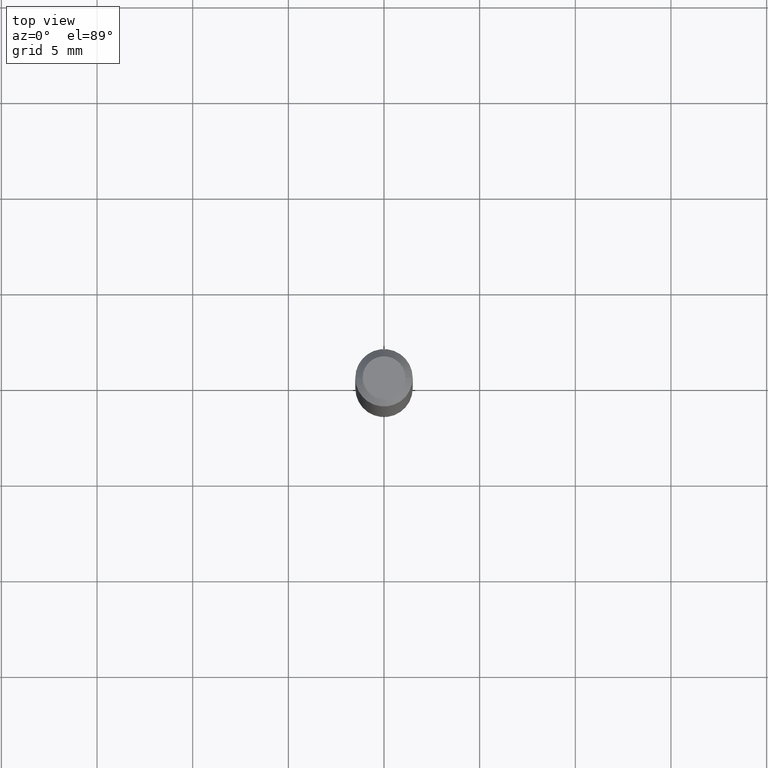
[diagram: clean part render]
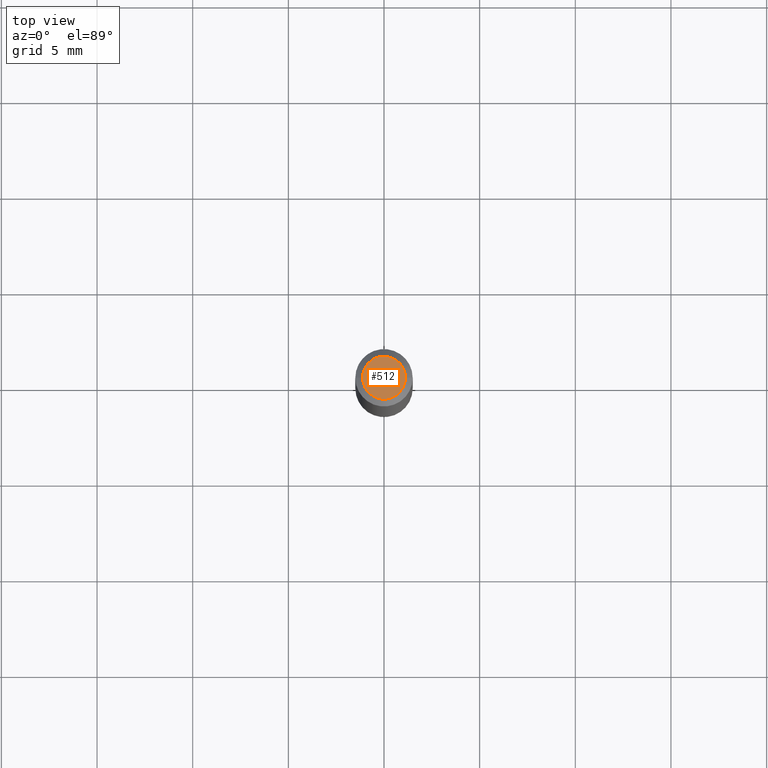
[diagram: same view with one face highlighted and labeled with its STEP entity id]
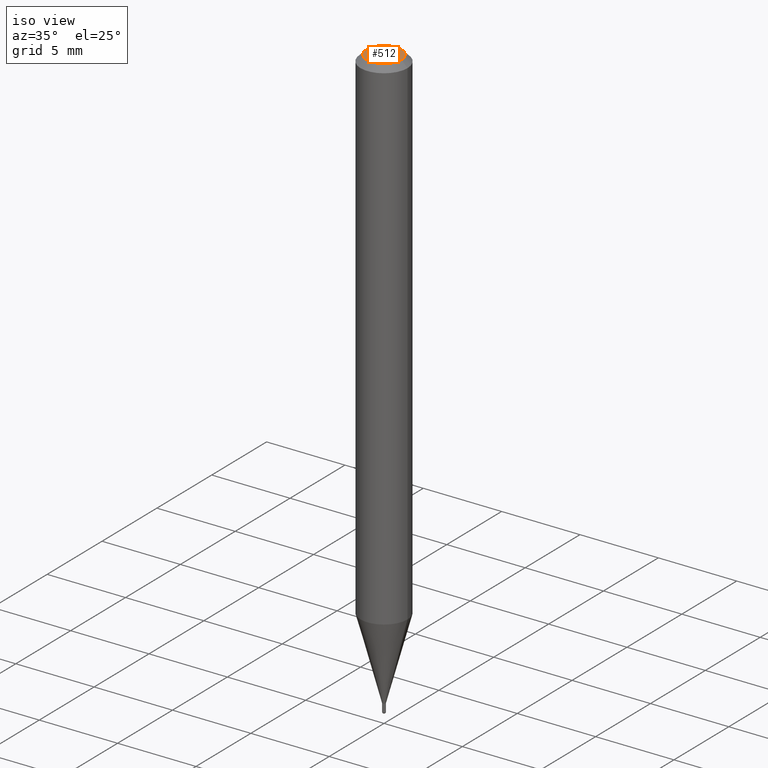
[diagram: same view with one face highlighted and labeled with its STEP entity id]
A machine part, top view. The second image highlights one B-rep face of the part: STEP entity #512.
A second angle (iso view) of the same face is appended — the face is thin or edge-on in the first view.
In plain terms, the highlighted planar face has unit normal (0, -0, -1).
Its self-contained STEP definition (entity closure, byte-faithful):
#10 = AXIS2_PLACEMENT_3D ( 'NONE', #37, #287, #397 ) ;
#13 = DIRECTION ( 'NONE',  ( 1.000000000000000000, -6.982962677686265922E-15, 4.888540261209747396E-29 ) ) ;
#37 = CARTESIAN_POINT ( 'NONE',  ( 1.968655146103496235E-45, -2.810717800960375713E-31, -8.050215734195126909E-17 ) ) ;
#38 = EDGE_CURVE ( 'NONE', #101, #105, #337, .T. ) ;
#53 = CARTESIAN_POINT ( 'NONE',  ( 3.075995059520799729E-16, 0.04404999999999999888, -1.940508316470162065E-16 ) ) ;
#79 = FACE_OUTER_BOUND ( 'NONE', #454, .T. ) ;
#101 = VERTEX_POINT ( 'NONE', #480 ) ;
#105 = VERTEX_POINT ( 'NONE', #401 ) ;
#114 = CIRCLE ( 'NONE', #10, 0.04404999999999999888 ) ;
#146 = CARTESIAN_POINT ( 'NONE',  ( 1.968655146103496235E-45, -2.810717800960375713E-31, -8.050215734195126909E-17 ) ) ;
#214 = DIRECTION ( 'NONE',  ( -1.000000000000000000, 6.982962677686265922E-15, -4.876176775795935793E-29 ) ) ;
#287 = DIRECTION ( 'NONE',  ( -2.445468806185136597E-29, 3.491481338843145583E-15, 1.000000000000000000 ) ) ;
#306 = DIRECTION ( 'NONE',  ( 2.438088387897960049E-29, -3.491481338843145188E-15, -1.000000000000000000 ) ) ;
#311 = PLANE ( 'NONE',  #356 ) ;
#337 = CIRCLE ( 'NONE', #361, 0.04404999999999999888 ) ;
#356 = AXIS2_PLACEMENT_3D ( 'NONE', #53, #306, #214 ) ;
#361 = AXIS2_PLACEMENT_3D ( 'NONE', #146, #376, #13 ) ;
#375 = ORIENTED_EDGE ( 'NONE', *, *, #38, .T. ) ;
#376 = DIRECTION ( 'NONE',  ( -2.445468806185136597E-29, 3.491481338843145583E-15, 1.000000000000000000 ) ) ;
#397 = DIRECTION ( 'NONE',  ( 1.000000000000000000, -6.982962677686265922E-15, 4.888540261209747396E-29 ) ) ;
#401 = CARTESIAN_POINT ( 'NONE',  ( -0.04404999999999999888, 3.337856159934031674E-16, -8.050215734195352474E-17 ) ) ;
#454 = EDGE_LOOP ( 'NONE', ( #462, #375 ) ) ;
#462 = ORIENTED_EDGE ( 'NONE', *, *, #482, .T. ) ;
#480 = CARTESIAN_POINT ( 'NONE',  ( 0.04404999999999999888, -3.798447818264463530E-16, -8.050215734194887786E-17 ) ) ;
#482 = EDGE_CURVE ( 'NONE', #105, #101, #114, .T. ) ;
#512 = ADVANCED_FACE ( 'NONE', ( #79 ), #311, .F. ) ;